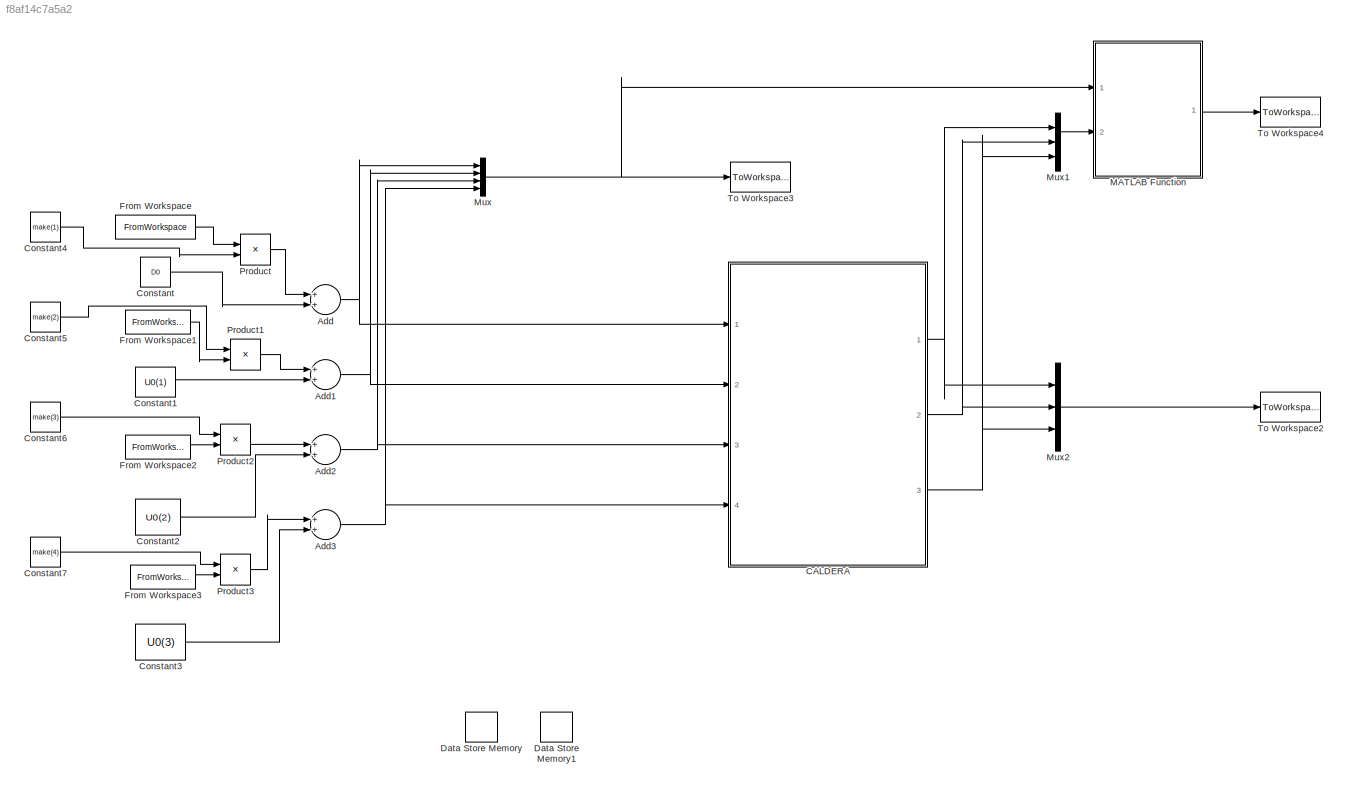
MODEL slx_f8af14c7a5a2
KIND model
CONFIG AbsTol = auto
CONFIG EnableMultiTasking = on
CONFIG FixedStep = Dt
CONFIG MaxStep = auto
CONFIG MinStep = auto
CONFIG RelTol = 1e-3
CONFIG SampleTimeConstraint = Unconstrained
CONFIG Solver = FixedStepAuto
CONFIG SolverName = FixedStepAuto
CONFIG StartTime = 0.0
CONFIG StopTime = simTime
BLOCK [Sum] Add
  InputSameDT = off
  OutDataTypeStr = Inherit: Inherit via internal rule
  Ports = [2, 1]
  SaturateOnIntegerOverflow = off
BLOCK [Sum] Add1
  InputSameDT = off
  OutDataTypeStr = Inherit: Inherit via internal rule
  Ports = [2, 1]
  SaturateOnIntegerOverflow = off
BLOCK [Sum] Add2
  InputSameDT = off
  OutDataTypeStr = Inherit: Inherit via internal rule
  Ports = [2, 1]
  SaturateOnIntegerOverflow = off
BLOCK [Sum] Add3
  InputSameDT = off
  OutDataTypeStr = Inherit: Inherit via internal rule
  Ports = [2, 1]
  SaturateOnIntegerOverflow = off
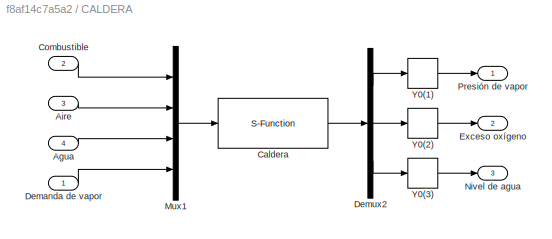
BLOCK [SubSystem] CALDERA
  Ports = [4, 3]
  RequestExecContextInheritance = off
  Variant = off
BLOCK [Inport] CALDERA/Agua
  IconDisplay = Port number
  Port = 4
BLOCK [Inport] CALDERA/Aire
  IconDisplay = Port number
  Port = 3
BLOCK [S-Function] CALDERA/Caldera
  EnableBusSupport = off
  FunctionName = cic2017_boiler
  Parameters = Y0,[U0 D0]
  Ports = [1, 1]
  SFcnIsStateOwnerBlock = off
  SFunctionDeploymentMode = off
BLOCK [Inport] CALDERA/Combustible
  IconDisplay = Port number
  Port = 2
BLOCK [Inport] CALDERA/Demanda de vapor
  IconDisplay = Port number
BLOCK [Demux] CALDERA/Demux2
  DisplayOption = bar
  Outputs = 3
  Ports = [1, 3]
BLOCK [Outport] CALDERA/Exceso oxígeno
  IconDisplay = Port number
  Port = 2
BLOCK [Mux] CALDERA/Mux1
  DisplayOption = bar
  Ports = [4, 1]
BLOCK [Outport] CALDERA/Nivel de agua
  IconDisplay = Port number
  Port = 3
BLOCK [Outport] CALDERA/Presión de vapor
  IconDisplay = Port number
BLOCK [Memory] CALDERA/Y0(1)
  X0 = Y0(1)
BLOCK [Memory] CALDERA/Y0(2)
  X0 = Y0(2)
BLOCK [Memory] CALDERA/Y0(3)
  X0 = Y0(3)
BLOCK [Constant] Constant
  Value = D0
BLOCK [Constant] Constant1
  Value = U0(1)
BLOCK [Constant] Constant2
  Value = U0(2)
BLOCK [Constant] Constant3
  Value = U0(3)
BLOCK [Constant] Constant4
  Value = make(1)
BLOCK [Constant] Constant5
  Value = make(2)
BLOCK [Constant] Constant6
  Value = make(3)
BLOCK [Constant] Constant7
  Value = make(4)
BLOCK [DataStoreMemory] Data Store Memory
  DataStoreName = pastU
  InitialValue = [D0 U0]'*ones(1,uRecSize*effectiveReactionTime);
  OutDataTypeStr = double
  ReadBeforeWriteMsg = warning
  ShowAdditionalParam = off
  SignalType = real
  VectorParams1D = off
  WriteAfterReadMsg = warning
  WriteAfterWriteMsg = warning
BLOCK [DataStoreMemory] Data Store Memory1
  DataStoreName = pastY
  InitialValue = Y0'*ones(1,yRecSize*effectiveReactionTime)
  OutDataTypeStr = double
  ReadBeforeWriteMsg = warning
  ShowAdditionalParam = off
  SignalType = real
  VectorParams1D = off
  WriteAfterReadMsg = warning
  WriteAfterWriteMsg = warning
BLOCK [FromWorkspace] From Workspace
  SampleTime = Dt
  VariableName = demandaVapor
  ZeroCross = on
BLOCK [FromWorkspace] From Workspace1
  SampleTime = Dt
  VariableName = combustible
  ZeroCross = on
BLOCK [FromWorkspace] From Workspace2
  SampleTime = Dt
  VariableName = aire
  ZeroCross = on
BLOCK [FromWorkspace] From Workspace3
  SampleTime = Dt
  VariableName = agua
  ZeroCross = on
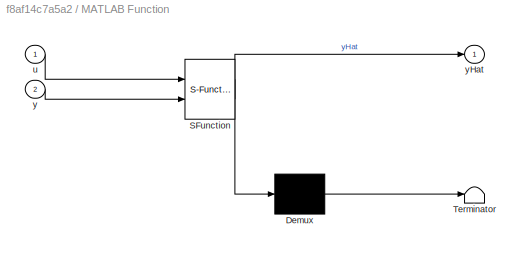
BLOCK [SubSystem] MATLAB Function
  ErrorFcn = Stateflow.Translate.translate
  PermitHierarchicalResolution = ExplicitOnly
  Ports = [2, 1]
  RequestExecContextInheritance = off
  SFBlockType = MATLAB Function
  TreatAsAtomicUnit = on
  Variant = off
BLOCK [Demux] MATLAB Function/ Demux 
  Outputs = 1
  Ports = [1, 1]
BLOCK [S-Function] MATLAB Function/ SFunction 
  EnableBusSupport = on
  FunctionName = sf_sfun
  Parameters = delayUMatrix,delayYMatrix,effectiveReactionTime,numCV,numDV,numMV
  PortCounts = [2 2]
  Ports = [2, 2]
  SFcnIsStateOwnerBlock = off
  SFunctionDeploymentMode = off
  Tag = Stateflow S-Function openLoopBoiler_RF 2
BLOCK [Terminator] MATLAB Function/ Terminator 
BLOCK [Inport] MATLAB Function/u
  IconDisplay = Port number
BLOCK [Inport] MATLAB Function/y
  IconDisplay = Port number
  Port = 2
BLOCK [Outport] MATLAB Function/yHat
  IconDisplay = Port number
BLOCK [Mux] Mux
  DisplayOption = bar
  Ports = [4, 1]
BLOCK [Mux] Mux1
  DisplayOption = bar
  Inputs = 3
  Ports = [3, 1]
BLOCK [Mux] Mux2
  DisplayOption = bar
  Inputs = 3
  Ports = [3, 1]
BLOCK [Product] Product
  InputSameDT = off
  OutDataTypeStr = Inherit: Inherit via internal rule
  Ports = [2, 1]
  RndMeth = Floor
  SaturateOnIntegerOverflow = off
BLOCK [Product] Product1
  InputSameDT = off
  OutDataTypeStr = Inherit: Inherit via internal rule
  Ports = [2, 1]
  RndMeth = Floor
  SaturateOnIntegerOverflow = off
BLOCK [Product] Product2
  InputSameDT = off
  OutDataTypeStr = Inherit: Inherit via internal rule
  Ports = [2, 1]
  RndMeth = Floor
  SaturateOnIntegerOverflow = off
BLOCK [Product] Product3
  InputSameDT = off
  OutDataTypeStr = Inherit: Inherit via internal rule
  Ports = [2, 1]
  RndMeth = Floor
  SaturateOnIntegerOverflow = off
BLOCK [ToWorkspace] To Workspace2
  FixptAsFi = on
  MaxDataPoints = inf
  Ports = [1]
  SampleTime = -1
  Save2DSignal = 3-D array (concatenate along third dimension)
  SaveFormat = Structure With Time
  VariableName = y
BLOCK [ToWorkspace] To Workspace3
  FixptAsFi = on
  MaxDataPoints = inf
  Ports = [1]
  SampleTime = -1
  Save2DSignal = 3-D array (concatenate along third dimension)
  SaveFormat = Structure With Time
  VariableName = inputs
BLOCK [ToWorkspace] To Workspace4
  FixptAsFi = on
  MaxDataPoints = inf
  Ports = [1]
  SampleTime = -1
  Save2DSignal = 3-D array (concatenate along third dimension)
  SaveFormat = Structure With Time
  VariableName = yHat
NET Add1:1 -> CALDERA:2, Mux:2
NET Add2:1 -> CALDERA:3, Mux:3
NET Add3:1 -> CALDERA:4, Mux:4
NET Add:1 -> CALDERA:1, Mux:1
LINE CALDERA/Agua:1 -> CALDERA/Mux1:3
LINE CALDERA/Aire:1 -> CALDERA/Mux1:2
LINE CALDERA/Caldera:1 -> CALDERA/Demux2:1
LINE CALDERA/Combustible:1 -> CALDERA/Mux1:1
LINE CALDERA/Demanda de vapor:1 -> CALDERA/Mux1:4
LINE CALDERA/Demux2:1 -> CALDERA/Y0(1):1
LINE CALDERA/Demux2:2 -> CALDERA/Y0(2):1
LINE CALDERA/Demux2:3 -> CALDERA/Y0(3):1
LINE CALDERA/Mux1:1 -> CALDERA/Caldera:1
LINE CALDERA/Y0(1):1 -> CALDERA/Presión de vapor:1
LINE CALDERA/Y0(2):1 -> CALDERA/Exceso oxígeno:1
LINE CALDERA/Y0(3):1 -> CALDERA/Nivel de agua:1
NET CALDERA:1 -> Mux1:1, Mux2:1
NET CALDERA:2 -> Mux1:2, Mux2:2
NET CALDERA:3 -> Mux1:3, Mux2:3
LINE Constant1:1 -> Add1:2
LINE Constant2:1 -> Add2:2
LINE Constant3:1 -> Add3:2
LINE Constant4:1 -> Product:2
LINE Constant5:1 -> Product1:1
LINE Constant6:1 -> Product2:1
LINE Constant7:1 -> Product3:1
LINE Constant:1 -> Add:2
LINE From Workspace1:1 -> Product1:2
LINE From Workspace2:1 -> Product2:2
LINE From Workspace3:1 -> Product3:2
LINE From Workspace:1 -> Product:1
LINE MATLAB Function:1 -> To Workspace4:1
LINE Mux1:1 -> MATLAB Function:2
LINE Mux2:1 -> To Workspace2:1
NET Mux:1 -> MATLAB Function:1, To Workspace3:1
LINE Product1:1 -> Add1:1
LINE Product2:1 -> Add2:1
LINE Product3:1 -> Add3:1
LINE Product:1 -> Add:1
note: NET lines group one-source signal fan-out (src -> all destinations, sorted); 1:1 wires keep LINE
CHART MATLAB Function states=1 transitions=1
  STATE_LABEL 'eML_blk_kernel()'
  STATE_LABEL "SCRIPT:\nfunction yHat = predictorSimulink(u,y,effectiveReactionTime, delayUMatrix, numMV, numDV, numCV, delayYMatrix)\n\ncoder.extrinsic('predictRF_Y1_mex');\ncoder.extrinsic('predictRF_Y2_mex');\ncoder.extrinsic('predictRF_Y3_mex');\nglobal pastU\nglobal pastY\n% u: vector containing [dv mv(1) mv(2) mv(3)];0\n% y: vector containing [y(1) y(2) y(3)]\nyHat = zeros(numCV,1);\npastY(:,2:end) = pastY(:,1:end-1)...<+907ch>"
